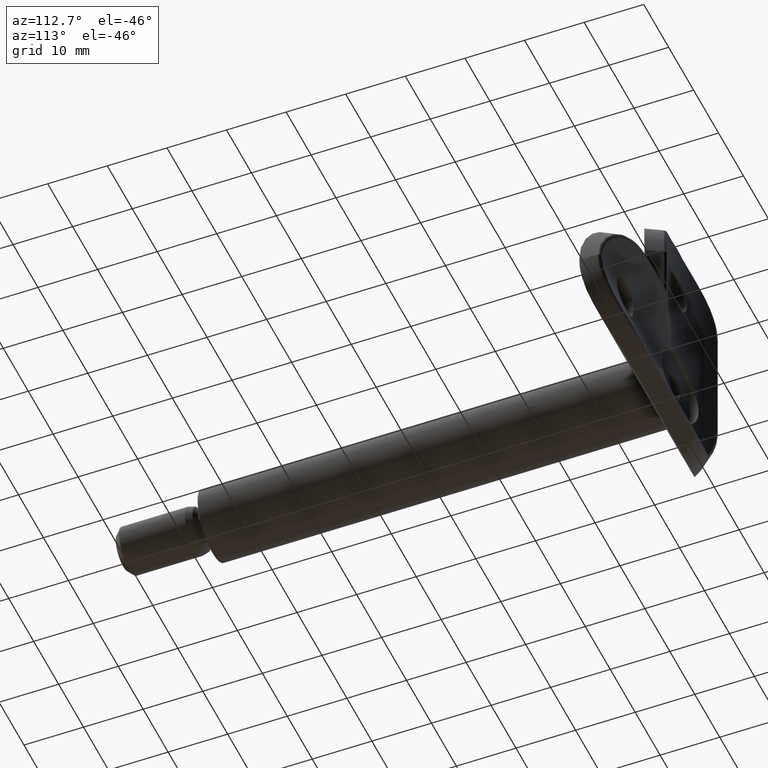
[diagram: clean part render]
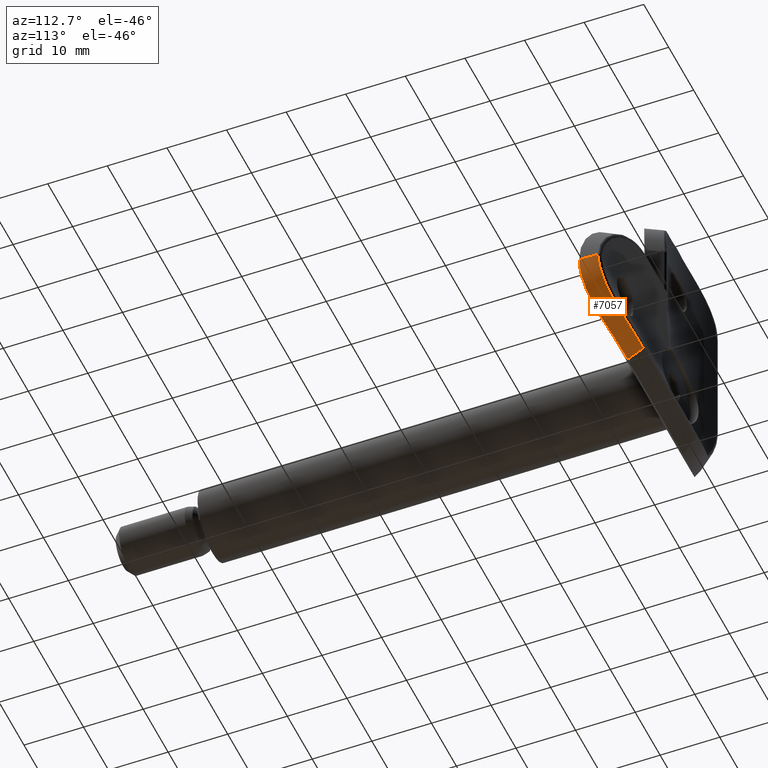
[diagram: same view with one face highlighted and labeled with its STEP entity id]
A machine part, auxiliary view. The second image highlights one B-rep face of the part: STEP entity #7057.
In plain terms, the highlighted cylindrical surface (partial cylindrical patch) has radius 12 mm, axis along (0, -0.8741, -0.4858).
Its self-contained STEP definition (entity closure, byte-faithful):
#30 = CARTESIAN_POINT ( 'NONE',  ( 31.00000000000000000, 0.0000000000000000000, -30.99999999999989700 ) ) ;
#35 = B_SPLINE_CURVE_WITH_KNOTS ( 'NONE', 3,
 ( #6446, #4067, #11207, #14762, #4171, #10120, #513, #14811, #12342, #12494, #7643, #2800, #8777, #5378, #8886, #459, #11152, #8827, #4216, #1703, #1597, #14866, #11255, #14914 ),
 .UNSPECIFIED., .F., .F.,
 ( 4, 2, 2, 2, 2, 2, 2, 2, 2, 2, 2, 4 ),
 ( 3.469446951953614200E-018, 0.002406580534152866200, 0.003609870801229297600, 0.004813161068305729000, 0.007219741602458603000, 0.008423031869535035200, 0.009626322136611468300, 0.01203290267076433100, 0.01443948320491719400, 0.01564277347199363400, 0.01684606373907007400, 0.01925264427322297500 ),
 .UNSPECIFIED. ) ;
#286 = CARTESIAN_POINT ( 'NONE',  ( 31.00000000000000000, 0.0000000000000000000, -30.99999999999989700 ) ) ;
#459 = CARTESIAN_POINT ( 'NONE',  ( 29.55461524013830800, 0.7722096076137905400, -37.16683472091861500 ) ) ;
#492 = B_SPLINE_CURVE_WITH_KNOTS ( 'NONE', 3,
 ( #15236, #14242, #15288, #12932, #3545, #9524, #14141, #985, #1033, #14191, #9370, #9417, #10588, #941, #7077, #8273, #15450, #11821, #1137, #4754, #4707, #13094, #13038, #10739, #11925, #12130 ),
 .UNSPECIFIED., .F., .F.,
 ( 4, 2, 2, 2, 2, 2, 2, 2, 2, 2, 2, 2, 4 ),
 ( 0.0000000000000000000, 0.002211687512370209100, 0.003317531268555313700, 0.004423375024740418300, 0.006635062537110627400, 0.007740906293295732800, 0.008846750049480836500, 0.01105843756185105600, 0.01216428131803616900, 0.01327012507422127900, 0.01548181258659150400, 0.01658765634277661900, 0.01769350009896172900 ),
 .UNSPECIFIED. ) ;
#513 = CARTESIAN_POINT ( 'NONE',  ( 23.33865606415827900, 2.731029278538614300, -42.29067707203914500 ) ) ;
#515 = EDGE_CURVE ( 'NONE', #6261, #15361, #2779, .T. ) ;
#929 = EDGE_CURVE ( 'NONE', #6268, #15361, #35, .T. ) ;
#941 = CARTESIAN_POINT ( 'NONE',  ( 27.63755154511085300, 4.283856957897538300, -38.18662629599896300 ) ) ;
#985 = CARTESIAN_POINT ( 'NONE',  ( 24.03899358220073900, 5.252852787617579900, -40.56934946306010700 ) ) ;
#1033 = CARTESIAN_POINT ( 'NONE',  ( 24.69844563057120700, 5.112828249825274600, -40.26990149819540200 ) ) ;
#1137 = CARTESIAN_POINT ( 'NONE',  ( 29.55491169464931600, 3.555822712916788800, -35.56794250312870500 ) ) ;
#1424 = VECTOR ( 'NONE', #10861, 1000.000000000000200 ) ;
#1597 = CARTESIAN_POINT ( 'NONE',  ( 30.73668300403214800, 0.1565209849526128200, -33.80464260532988200 ) ) ;
#1703 = CARTESIAN_POINT ( 'NONE',  ( 30.65149741152383800, 0.2049711980895005400, -34.19960588104398600 ) ) ;
#2779 =( BOUNDED_CURVE ( )  B_SPLINE_CURVE ( 3, ( #6992, #11795, #7191, #30 ),
 .UNSPECIFIED., .F., .F. ) 
 B_SPLINE_CURVE_WITH_KNOTS ( ( 4, 4 ),
 ( 1.447820046972165600, 1.570796326794896800 ),
 .UNSPECIFIED. ) 
 CURVE ( )  GEOMETRIC_REPRESENTATION_ITEM ( )  RATIONAL_B_SPLINE_CURVE ( ( 1.000000000000000000, 0.9987401332329102200, 0.9987401332329102200, 1.000000000000000000 ) ) 
 REPRESENTATION_ITEM ( '' )  );
#2800 = CARTESIAN_POINT ( 'NONE',  ( 27.08503671903731200, 1.765532671221287300, -40.17439894605259800 ) ) ;
#3545 = CARTESIAN_POINT ( 'NONE',  ( 21.93040518664169300, 5.573518088803377100, -41.22228452745743300 ) ) ;
#4067 = CARTESIAN_POINT ( 'NONE',  ( 19.81369584259645900, 3.110882370972172700, -42.99999999999995000 ) ) ;
#4093 = CARTESIAN_POINT ( 'NONE',  ( 19.00000000000003900, 3.110882370972168700, -42.99999999999993600 ) ) ;
#4171 = CARTESIAN_POINT ( 'NONE',  ( 22.18293612948993100, 2.908403245503325100, -42.62887820642730200 ) ) ;
#4216 = CARTESIAN_POINT ( 'NONE',  ( 30.44410955837537700, 0.3189425357995786500, -34.97592136841173300 ) ) ;
#4676 = CARTESIAN_POINT ( 'NONE',  ( 18.99999999999999600, 2.356871524924413700, -29.68996691828355200 ) ) ;
#4707 = CARTESIAN_POINT ( 'NONE',  ( 30.29258430663403300, 3.247913975560726500, -33.90580999140681200 ) ) ;
#4723 = CARTESIAN_POINT ( 'NONE',  ( 19.00000000000004300, 3.110882370972166900, -42.99999999999994300 ) ) ;
#4754 = CARTESIAN_POINT ( 'NONE',  ( 30.03490663537371200, 3.357423306449193400, -34.58912695310485200 ) ) ;
#5279 = VERTEX_POINT ( 'NONE', #7801 ) ;
#5378 = CARTESIAN_POINT ( 'NONE',  ( 28.20539369568063000, 1.358453551449883000, -39.09940496636315300 ) ) ;
#5428 = ORIENTED_EDGE ( 'NONE', *, *, #515, .T. ) ;
#5943 = DIRECTION ( 'NONE',  ( 1.631188327939533100E-015, -0.8740533453047705200, -0.4858299595141698000 ) ) ;
#6261 = VERTEX_POINT ( 'NONE', #10139 ) ;
#6268 = VERTEX_POINT ( 'NONE', #4093 ) ;
#6388 = CYLINDRICAL_SURFACE ( 'NONE', #11254, 12.00000000000000200 ) ;
#6446 = CARTESIAN_POINT ( 'NONE',  ( 19.00000000000003900, 3.110882370972168700, -42.99999999999993600 ) ) ;
#6992 = CARTESIAN_POINT ( 'NONE',  ( 30.90937530504015700, 3.029863760737438100, -30.99999999999990100 ) ) ;
#7057 = ADVANCED_FACE ( 'NONE', ( #9551 ), #6388, .T. ) ;
#7077 = CARTESIAN_POINT ( 'NONE',  ( 28.12862387784115000, 4.109824930646257500, -37.66576038936705800 ) ) ;
#7191 = CARTESIAN_POINT ( 'NONE',  ( 30.99999999999999600, 1.013143238464490700, -30.99999999999989700 ) ) ;
#7643 = CARTESIAN_POINT ( 'NONE',  ( 26.47020615263076900, 1.966409090779937900, -40.66143012438511300 ) ) ;
#7801 = CARTESIAN_POINT ( 'NONE',  ( 19.00000000000003900, 5.738077944829618600, -41.53971119023865600 ) ) ;
#8273 = CARTESIAN_POINT ( 'NONE',  ( 28.78748829787578200, 3.861754889686726900, -36.80783773510750500 ) ) ;
#8777 = CARTESIAN_POINT ( 'NONE',  ( 27.37664932174589100, 1.663714815541103700, -39.91650731817235000 ) ) ;
#8827 = CARTESIAN_POINT ( 'NONE',  ( 30.32274288943989400, 0.3840058321923354200, -35.35480211254277100 ) ) ;
#8886 = CARTESIAN_POINT ( 'NONE',  ( 28.69690548182579100, 1.155074959277566200, -38.49703330417163000 ) ) ;
#9370 = CARTESIAN_POINT ( 'NONE',  ( 25.94274779239515300, 4.798744972214016100, -39.53875761666906600 ) ) ;
#9417 = CARTESIAN_POINT ( 'NONE',  ( 26.53523480616935600, 4.630367664769247300, -39.11963001238795800 ) ) ;
#9524 = CARTESIAN_POINT ( 'NONE',  ( 22.64366967859940900, 5.482199962630007300, -41.04062280470149900 ) ) ;
#9551 = FACE_OUTER_BOUND ( 'NONE', #14636, .T. ) ;
#9759 = EDGE_CURVE ( 'NONE', #5279, #6261, #492, .T. ) ;
#10120 = CARTESIAN_POINT ( 'NONE',  ( 22.95570776623296900, 2.796066735304211500, -42.41587513010995300 ) ) ;
#10139 = CARTESIAN_POINT ( 'NONE',  ( 30.90937530504015700, 3.029863760737438100, -30.99999999999990100 ) ) ;
#10588 = CARTESIAN_POINT ( 'NONE',  ( 26.82195453554998100, 4.543563230655472300, -38.89475165576111900 ) ) ;
#10739 = CARTESIAN_POINT ( 'NONE',  ( 30.81444628284847600, 3.050339483887504400, -31.74041099768551500 ) ) ;
#10838 = ORIENTED_EDGE ( 'NONE', *, *, #929, .F. ) ;
#10861 = DIRECTION ( 'NONE',  ( 1.631188327939532900E-015, -0.8740533453047704100, -0.4858299595141696800 ) ) ;
#11152 = CARTESIAN_POINT ( 'NONE',  ( 29.90472026188330900, 0.6001443119266323100, -36.46392267945775200 ) ) ;
#11207 = CARTESIAN_POINT ( 'NONE',  ( 20.61347366024906700, 3.070751784124174900, -42.92859548616411300 ) ) ;
#11254 = AXIS2_PLACEMENT_3D ( 'NONE', #4676, #5943, #11789 ) ;
#11255 = CARTESIAN_POINT ( 'NONE',  ( 31.00000000000001800, 3.947173534205053400E-016, -31.81328836736727100 ) ) ;
#11789 = DIRECTION ( 'NONE',  ( 0.0000000000000000000, 0.4858299595141697400, -0.8740533453047704100 ) ) ;
#11795 = CARTESIAN_POINT ( 'NONE',  ( 30.96975366199062700, 2.024371838684317900, -30.99999999999990100 ) ) ;
#11821 = CARTESIAN_POINT ( 'NONE',  ( 29.37927491250000500, 3.627657011764033000, -35.88649370924998300 ) ) ;
#11925 = CARTESIAN_POINT ( 'NONE',  ( 30.86887278765310000, 3.035608346090380700, -31.37171578211708200 ) ) ;
#12130 = CARTESIAN_POINT ( 'NONE',  ( 30.90937530504015700, 3.029863760737438100, -30.99999999999990100 ) ) ;
#12342 = CARTESIAN_POINT ( 'NONE',  ( 25.15304723848734600, 2.346849745541558500, -41.51842810678136400 ) ) ;
#12426 = LINE ( 'NONE', #4723, #1424 ) ;
#12494 = CARTESIAN_POINT ( 'NONE',  ( 26.14699636764820700, 2.065345764212748400, -40.89015124557446500 ) ) ;
#12932 = CARTESIAN_POINT ( 'NONE',  ( 21.57087987615997100, 5.612088555418209200, -41.29759581758881400 ) ) ;
#13038 = CARTESIAN_POINT ( 'NONE',  ( 30.67588060939955600, 3.096880770363721300, -32.47147626150390200 ) ) ;
#13094 = CARTESIAN_POINT ( 'NONE',  ( 30.59134747255645300, 3.128854244805330300, -32.83518950287540900 ) ) ;
#13316 = EDGE_CURVE ( 'NONE', #5279, #6268, #12426, .T. ) ;
#13975 = ORIENTED_EDGE ( 'NONE', *, *, #13316, .F. ) ;
#14141 = CARTESIAN_POINT ( 'NONE',  ( 22.99922711695879900, 5.429111303165160300, -40.93356434079841900 ) ) ;
#14191 = CARTESIAN_POINT ( 'NONE',  ( 25.63792390336026400, 4.880105572080473100, -39.73263140551077300 ) ) ;
#14242 = CARTESIAN_POINT ( 'NONE',  ( 19.74777137648279900, 5.738077944829617700, -41.53971119023865600 ) ) ;
#14535 = ORIENTED_EDGE ( 'NONE', *, *, #9759, .T. ) ;
#14636 = EDGE_LOOP ( 'NONE', ( #13975, #14535, #5428, #10838 ) ) ;
#14762 = CARTESIAN_POINT ( 'NONE',  ( 21.79309573292406200, 2.955840429513814100, -42.71699478268035200 ) ) ;
#14811 = CARTESIAN_POINT ( 'NONE',  ( 24.45091473416319200, 2.516643810385658300, -41.86687449944527400 ) ) ;
#14866 = CARTESIAN_POINT ( 'NONE',  ( 30.93731128375659300, 0.04009865889710159000, -32.61641426307907900 ) ) ;
#14914 = CARTESIAN_POINT ( 'NONE',  ( 31.00000000000000000, 0.0000000000000000000, -30.99999999999989700 ) ) ;
#15236 = CARTESIAN_POINT ( 'NONE',  ( 19.00000000000003900, 5.738077944829618600, -41.53971119023865600 ) ) ;
#15288 = CARTESIAN_POINT ( 'NONE',  ( 20.48378448394309000, 5.705503992355598800, -41.47855176280986500 ) ) ;
#15361 = VERTEX_POINT ( 'NONE', #286 ) ;
#15450 = CARTESIAN_POINT ( 'NONE',  ( 28.99489296990415400, 3.780907073739720600, -36.50768791303865200 ) ) ;